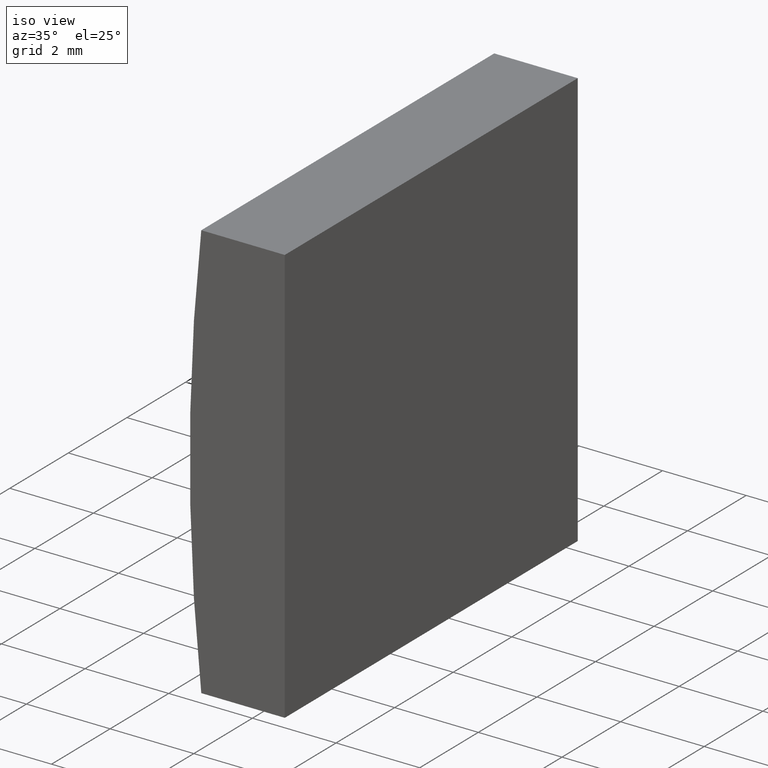
[diagram: clean part render]
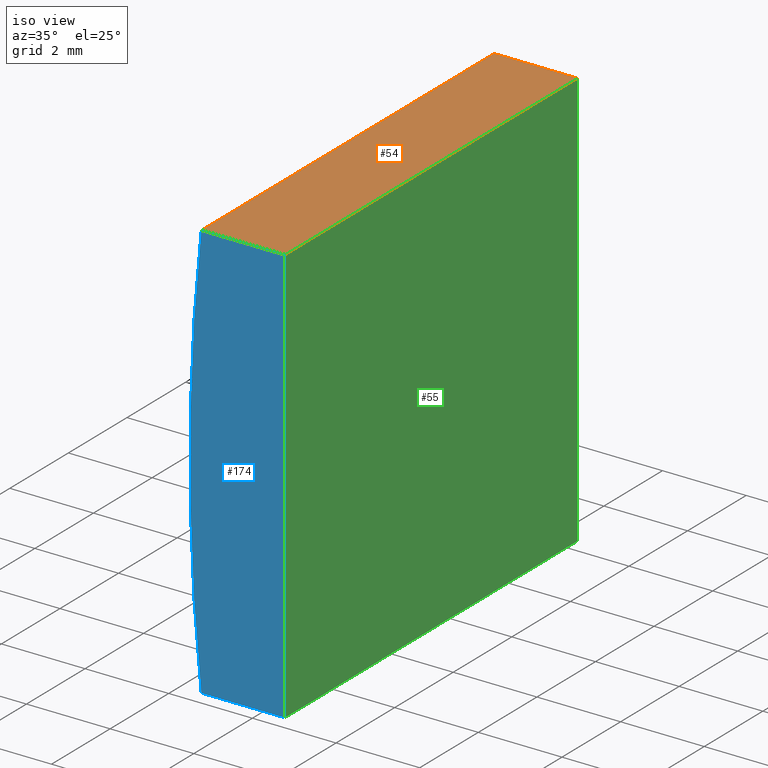
[diagram: same view with three faces highlighted in distinct colors, each labeled with its STEP entity id]
A machine part, iso view with three faces highlighted in distinct colors.
Their STEP definitions:

[orange] entity #54 — the highlighted planar face has unit normal (0, 0, -1).
#6 = VECTOR ( 'NONE', #182, 1000.000000000000000 ) ;
#8 = VERTEX_POINT ( 'NONE', #116 ) ;
#20 = CARTESIAN_POINT ( 'NONE',  ( -41.22135213884472900, 10.00000000000000000, 5.000000000000000000 ) ) ;
#23 = LINE ( 'NONE', #20, #71 ) ;
#25 = AXIS2_PLACEMENT_3D ( 'NONE', #126, #147, #44 ) ;
#30 = ORIENTED_EDGE ( 'NONE', *, *, #156, .F. ) ;
#31 = CARTESIAN_POINT ( 'NONE',  ( -39.22479566514873300, 10.00000000000000000, 5.000000000000000000 ) ) ;
#44 = DIRECTION ( 'NONE',  ( -1.000000000000000000, 0.0000000000000000000, -0.0000000000000000000 ) ) ;
#54 = ADVANCED_FACE ( 'NONE', ( #158 ), #177, .F. ) ;
#61 = ORIENTED_EDGE ( 'NONE', *, *, #166, .T. ) ;
#66 = ORIENTED_EDGE ( 'NONE', *, *, #76, .T. ) ;
#67 = LINE ( 'NONE', #120, #79 ) ;
#68 = DIRECTION ( 'NONE',  ( -0.0000000000000000000, -1.000000000000000000, -0.0000000000000000000 ) ) ;
#71 = VECTOR ( 'NONE', #163, 1000.000000000000000 ) ;
#76 = EDGE_CURVE ( 'NONE', #8, #111, #23, .T. ) ;
#79 = VECTOR ( 'NONE', #81, 1000.000000000000000 ) ;
#81 = DIRECTION ( 'NONE',  ( 1.000000000000000000, 0.0000000000000000000, 0.0000000000000000000 ) ) ;
#85 = LINE ( 'NONE', #96, #94 ) ;
#94 = VECTOR ( 'NONE', #68, 1000.000000000000000 ) ;
#96 = CARTESIAN_POINT ( 'NONE',  ( -39.22479566514873300, 10.00000000000000000, 5.000000000000000000 ) ) ;
#103 = CARTESIAN_POINT ( 'NONE',  ( -39.22479566514873300, 0.0000000000000000000, 5.000000000000000000 ) ) ;
#111 = VERTEX_POINT ( 'NONE', #203 ) ;
#116 = CARTESIAN_POINT ( 'NONE',  ( -41.22135213884472900, 10.00000000000000000, 5.000000000000000000 ) ) ;
#120 = CARTESIAN_POINT ( 'NONE',  ( -41.22135213884472900, 0.0000000000000000000, 5.000000000000000000 ) ) ;
#126 = CARTESIAN_POINT ( 'NONE',  ( -41.22135213884472900, 10.00000000000000000, 5.000000000000000000 ) ) ;
#127 = VERTEX_POINT ( 'NONE', #31 ) ;
#146 = EDGE_CURVE ( 'NONE', #8, #127, #173, .T. ) ;
#147 = DIRECTION ( 'NONE',  ( 0.0000000000000000000, 0.0000000000000000000, -1.000000000000000000 ) ) ;
#156 = EDGE_CURVE ( 'NONE', #127, #199, #85, .T. ) ;
#158 = FACE_OUTER_BOUND ( 'NONE', #161, .T. ) ;
#161 = EDGE_LOOP ( 'NONE', ( #61, #30, #178, #66 ) ) ;
#163 = DIRECTION ( 'NONE',  ( -0.0000000000000000000, -1.000000000000000000, -0.0000000000000000000 ) ) ;
#165 = CARTESIAN_POINT ( 'NONE',  ( -41.22135213884472900, 10.00000000000000000, 5.000000000000000000 ) ) ;
#166 = EDGE_CURVE ( 'NONE', #111, #199, #67, .T. ) ;
#173 = LINE ( 'NONE', #165, #6 ) ;
#177 = PLANE ( 'NONE',  #25 ) ;
#178 = ORIENTED_EDGE ( 'NONE', *, *, #146, .F. ) ;
#182 = DIRECTION ( 'NONE',  ( 1.000000000000000000, 0.0000000000000000000, 0.0000000000000000000 ) ) ;
#199 = VERTEX_POINT ( 'NONE', #103 ) ;
#203 = CARTESIAN_POINT ( 'NONE',  ( -41.22135213884472900, 0.0000000000000000000, 5.000000000000000000 ) ) ;

[blue] entity #174 — the highlighted planar face has unit normal (0, 1, 0).
#5 = CIRCLE ( 'NONE', #62, 45.85000000000000100 ) ;
#10 = CARTESIAN_POINT ( 'NONE',  ( 4.355204334851265500, 0.0000000000000000000, 4.286263797015675000E-017 ) ) ;
#12 = CARTESIAN_POINT ( 'NONE',  ( -39.22479566514873300, 0.0000000000000000000, -4.999999999999994700 ) ) ;
#19 = EDGE_LOOP ( 'NONE', ( #24, #93, #83, #112 ) ) ;
#22 = VERTEX_POINT ( 'NONE', #113 ) ;
#24 = ORIENTED_EDGE ( 'NONE', *, *, #121, .F. ) ;
#34 = CARTESIAN_POINT ( 'NONE',  ( 4.355204334851265500, 0.0000000000000000000, 4.286263797015675000E-017 ) ) ;
#38 = EDGE_CURVE ( 'NONE', #102, #22, #49, .T. ) ;
#49 = LINE ( 'NONE', #130, #135 ) ;
#53 = PLANE ( 'NONE',  #145 ) ;
#60 = DIRECTION ( 'NONE',  ( 0.0000000000000000000, 1.000000000000000000, 0.0000000000000000000 ) ) ;
#62 = AXIS2_PLACEMENT_3D ( 'NONE', #10, #60, #77 ) ;
#67 = LINE ( 'NONE', #120, #79 ) ;
#70 = DIRECTION ( 'NONE',  ( 0.0000000000000000000, -0.0000000000000000000, 1.000000000000000000 ) ) ;
#77 = DIRECTION ( 'NONE',  ( 0.0000000000000000000, 0.0000000000000000000, 1.000000000000000000 ) ) ;
#79 = VECTOR ( 'NONE', #81, 1000.000000000000000 ) ;
#81 = DIRECTION ( 'NONE',  ( 1.000000000000000000, 0.0000000000000000000, 0.0000000000000000000 ) ) ;
#83 = ORIENTED_EDGE ( 'NONE', *, *, #138, .F. ) ;
#93 = ORIENTED_EDGE ( 'NONE', *, *, #38, .F. ) ;
#101 = DIRECTION ( 'NONE',  ( -1.000000000000000000, -0.0000000000000000000, -2.606573115508492500E-015 ) ) ;
#102 = VERTEX_POINT ( 'NONE', #129 ) ;
#103 = CARTESIAN_POINT ( 'NONE',  ( -39.22479566514873300, 0.0000000000000000000, 5.000000000000000000 ) ) ;
#107 = LINE ( 'NONE', #12, #137 ) ;
#111 = VERTEX_POINT ( 'NONE', #203 ) ;
#112 = ORIENTED_EDGE ( 'NONE', *, *, #166, .F. ) ;
#113 = CARTESIAN_POINT ( 'NONE',  ( -41.22135213884472900, 0.0000000000000000000, -5.000000000000000000 ) ) ;
#120 = CARTESIAN_POINT ( 'NONE',  ( -41.22135213884472900, 0.0000000000000000000, 5.000000000000000000 ) ) ;
#121 = EDGE_CURVE ( 'NONE', #22, #111, #5, .T. ) ;
#128 = FACE_OUTER_BOUND ( 'NONE', #19, .T. ) ;
#129 = CARTESIAN_POINT ( 'NONE',  ( -39.22479566514873300, 0.0000000000000000000, -4.999999999999994700 ) ) ;
#130 = CARTESIAN_POINT ( 'NONE',  ( -41.22135213884472900, 0.0000000000000000000, -5.000000000000000000 ) ) ;
#135 = VECTOR ( 'NONE', #101, 1000.000000000000000 ) ;
#137 = VECTOR ( 'NONE', #204, 1000.000000000000000 ) ;
#138 = EDGE_CURVE ( 'NONE', #199, #102, #107, .T. ) ;
#145 = AXIS2_PLACEMENT_3D ( 'NONE', #34, #171, #70 ) ;
#166 = EDGE_CURVE ( 'NONE', #111, #199, #67, .T. ) ;
#171 = DIRECTION ( 'NONE',  ( 0.0000000000000000000, 1.000000000000000000, 0.0000000000000000000 ) ) ;
#174 = ADVANCED_FACE ( 'NONE', ( #128 ), #53, .F. ) ;
#199 = VERTEX_POINT ( 'NONE', #103 ) ;
#203 = CARTESIAN_POINT ( 'NONE',  ( -41.22135213884472900, 0.0000000000000000000, 5.000000000000000000 ) ) ;
#204 = DIRECTION ( 'NONE',  ( -0.0000000000000000000, -0.0000000000000000000, -1.000000000000000000 ) ) ;

[green] entity #55 — the highlighted planar face has unit normal (-1, 0, 0).
#12 = CARTESIAN_POINT ( 'NONE',  ( -39.22479566514873300, 0.0000000000000000000, -4.999999999999994700 ) ) ;
#15 = ORIENTED_EDGE ( 'NONE', *, *, #40, .F. ) ;
#31 = CARTESIAN_POINT ( 'NONE',  ( -39.22479566514873300, 10.00000000000000000, 5.000000000000000000 ) ) ;
#39 = VERTEX_POINT ( 'NONE', #187 ) ;
#40 = EDGE_CURVE ( 'NONE', #127, #39, #105, .T. ) ;
#41 = VECTOR ( 'NONE', #180, 1000.000000000000000 ) ;
#51 = ORIENTED_EDGE ( 'NONE', *, *, #156, .T. ) ;
#52 = AXIS2_PLACEMENT_3D ( 'NONE', #179, #153, #164 ) ;
#55 = ADVANCED_FACE ( 'NONE', ( #122 ), #148, .F. ) ;
#68 = DIRECTION ( 'NONE',  ( -0.0000000000000000000, -1.000000000000000000, -0.0000000000000000000 ) ) ;
#78 = ORIENTED_EDGE ( 'NONE', *, *, #157, .F. ) ;
#85 = LINE ( 'NONE', #96, #94 ) ;
#90 = LINE ( 'NONE', #151, #159 ) ;
#91 = EDGE_LOOP ( 'NONE', ( #117, #78, #15, #51 ) ) ;
#94 = VECTOR ( 'NONE', #68, 1000.000000000000000 ) ;
#96 = CARTESIAN_POINT ( 'NONE',  ( -39.22479566514873300, 10.00000000000000000, 5.000000000000000000 ) ) ;
#102 = VERTEX_POINT ( 'NONE', #129 ) ;
#103 = CARTESIAN_POINT ( 'NONE',  ( -39.22479566514873300, 0.0000000000000000000, 5.000000000000000000 ) ) ;
#105 = LINE ( 'NONE', #190, #41 ) ;
#107 = LINE ( 'NONE', #12, #137 ) ;
#117 = ORIENTED_EDGE ( 'NONE', *, *, #138, .T. ) ;
#122 = FACE_OUTER_BOUND ( 'NONE', #91, .T. ) ;
#127 = VERTEX_POINT ( 'NONE', #31 ) ;
#129 = CARTESIAN_POINT ( 'NONE',  ( -39.22479566514873300, 0.0000000000000000000, -4.999999999999994700 ) ) ;
#137 = VECTOR ( 'NONE', #204, 1000.000000000000000 ) ;
#138 = EDGE_CURVE ( 'NONE', #199, #102, #107, .T. ) ;
#139 = DIRECTION ( 'NONE',  ( -0.0000000000000000000, -1.000000000000000000, -0.0000000000000000000 ) ) ;
#148 = PLANE ( 'NONE',  #52 ) ;
#151 = CARTESIAN_POINT ( 'NONE',  ( -39.22479566514873300, 10.00000000000000000, -4.999999999999994700 ) ) ;
#153 = DIRECTION ( 'NONE',  ( -1.000000000000000000, 0.0000000000000000000, 0.0000000000000000000 ) ) ;
#156 = EDGE_CURVE ( 'NONE', #127, #199, #85, .T. ) ;
#157 = EDGE_CURVE ( 'NONE', #39, #102, #90, .T. ) ;
#159 = VECTOR ( 'NONE', #139, 1000.000000000000000 ) ;
#164 = DIRECTION ( 'NONE',  ( 0.0000000000000000000, 0.0000000000000000000, 1.000000000000000000 ) ) ;
#179 = CARTESIAN_POINT ( 'NONE',  ( -39.22479566514873300, 10.00000000000000000, -4.999999999999994700 ) ) ;
#180 = DIRECTION ( 'NONE',  ( -0.0000000000000000000, -0.0000000000000000000, -1.000000000000000000 ) ) ;
#187 = CARTESIAN_POINT ( 'NONE',  ( -39.22479566514873300, 10.00000000000000000, -4.999999999999994700 ) ) ;
#190 = CARTESIAN_POINT ( 'NONE',  ( -39.22479566514873300, 10.00000000000000000, -4.999999999999994700 ) ) ;
#199 = VERTEX_POINT ( 'NONE', #103 ) ;
#204 = DIRECTION ( 'NONE',  ( -0.0000000000000000000, -0.0000000000000000000, -1.000000000000000000 ) ) ;